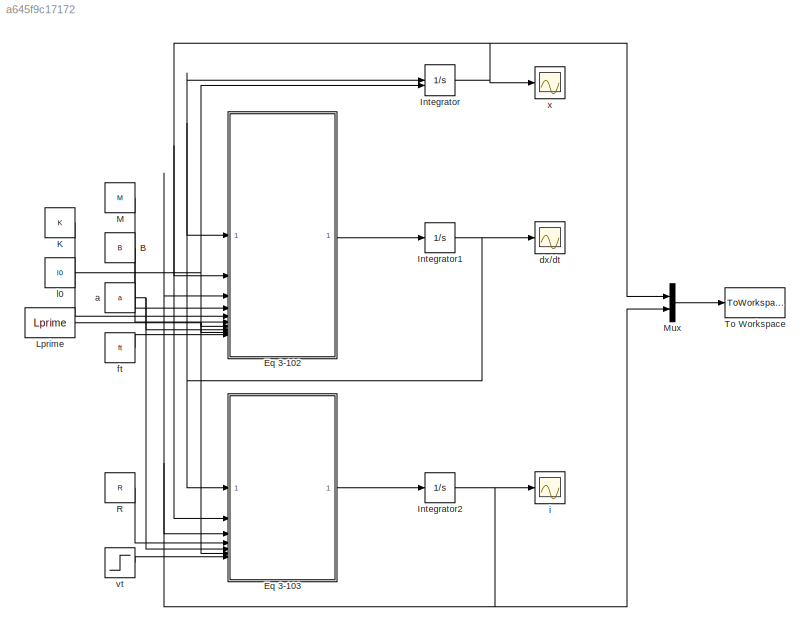
MODEL slx_a645f9c17172
KIND model
CONFIG AbsTol = auto
CONFIG EnableMultiTasking = on
CONFIG FixedStep = 1e-2
CONFIG MaxStep = auto
CONFIG MinStep = auto
CONFIG RelTol = 1e-3
CONFIG SampleTimeConstraint = Unconstrained
CONFIG SolverName = ode4
CONFIG StartTime = 0.0
CONFIG StopTime = 4
BLOCK [Constant] B
  Value = B
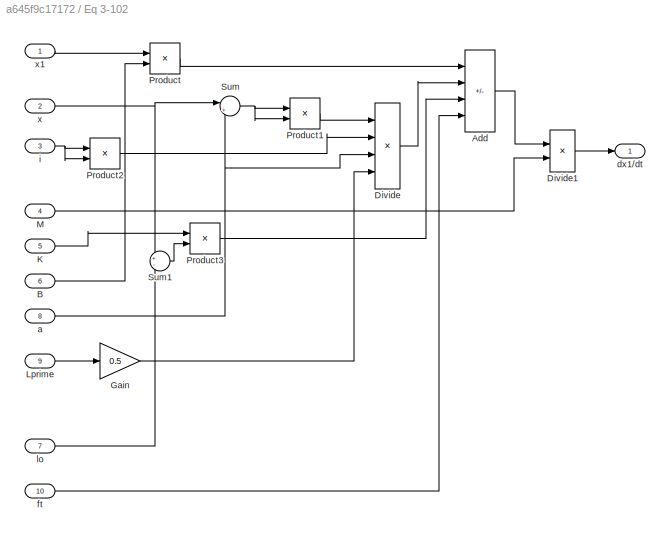
BLOCK [SubSystem] Eq 3-102 
BLOCK [Sum] Eq 3-102 /Add
  IconShape = rectangular
  Inputs = -+--
BLOCK [Inport] Eq 3-102 /B
  Port = 6
BLOCK [Product] Eq 3-102 /Divide
  Inputs = /***
BLOCK [Product] Eq 3-102 /Divide1
  Inputs = */
BLOCK [Gain] Eq 3-102 /Gain
  Gain = 0.5
BLOCK [Inport] Eq 3-102 /K
  Port = 5
BLOCK [Inport] Eq 3-102 /Lprime
  Port = 9
BLOCK [Inport] Eq 3-102 /M
  Port = 4
BLOCK [Product] Eq 3-102 /Product
BLOCK [Product] Eq 3-102 /Product1
BLOCK [Product] Eq 3-102 /Product2
BLOCK [Product] Eq 3-102 /Product3
BLOCK [Sum] Eq 3-102 /Sum
  Inputs = |++
BLOCK [Sum] Eq 3-102 /Sum1
  Inputs = +-
BLOCK [Inport] Eq 3-102 /a
  Port = 8
BLOCK [Outport] Eq 3-102 /dx1//dt
BLOCK [Inport] Eq 3-102 /ft
  Port = 10
BLOCK [Inport] Eq 3-102 /i
  Port = 3
BLOCK [Inport] Eq 3-102 /lo
  Port = 7
BLOCK [Inport] Eq 3-102 /x
  Port = 2
BLOCK [Inport] Eq 3-102 /x1
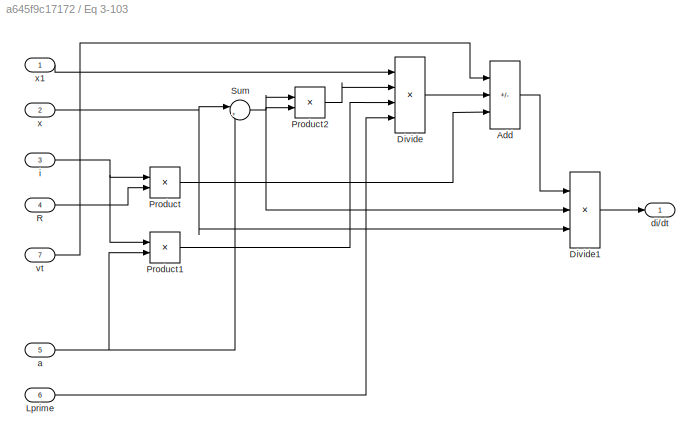
BLOCK [SubSystem] Eq 3-103
BLOCK [Sum] Eq 3-103/Add
  IconShape = rectangular
  Inputs = +--
BLOCK [Product] Eq 3-103/Divide
  Inputs = */**
BLOCK [Product] Eq 3-103/Divide1
  Inputs = **/
BLOCK [Inport] Eq 3-103/Lprime
  Port = 6
BLOCK [Product] Eq 3-103/Product
BLOCK [Product] Eq 3-103/Product1
BLOCK [Product] Eq 3-103/Product2
BLOCK [Inport] Eq 3-103/R
  Port = 4
BLOCK [Sum] Eq 3-103/Sum
  Inputs = |++
BLOCK [Inport] Eq 3-103/a
  Port = 5
BLOCK [Outport] Eq 3-103/di//dt
BLOCK [Inport] Eq 3-103/i
  Port = 3
BLOCK [Inport] Eq 3-103/vt
  Port = 7
BLOCK [Inport] Eq 3-103/x
  Port = 2
BLOCK [Inport] Eq 3-103/x1
BLOCK [Integrator] Integrator
  InitialConditionSource = external
BLOCK [Integrator] Integrator1
BLOCK [Integrator] Integrator2
BLOCK [Constant] K
  Value = K
BLOCK [Constant] Lprime
  Value = Lprime
BLOCK [Constant] M
  Value = M
BLOCK [Mux] Mux
  DisplayOption = bar
  Inputs = 2
BLOCK [Constant] R
  Value = R
BLOCK [ToWorkspace] To Workspace
  FixptAsFi = on
  MaxDataPoints = inf
  SampleTime = -1
  SaveFormat = Timeseries
  VariableName = simout
BLOCK [Constant] a
  Value = a
BLOCK [Scope] dx//dt
  Floating = off
  NumInputPorts = 1
  ScopeSpecificationString = C++SS(StrPVP('Location','[1, 49, 1921, 1031]'),StrPVP('Open','off'),MxPVP('AxesTitles',54,'struct(''axes1'',''%<SignalLabel>'')'),MxPVP('ScopeGraphics',57,'struct(''FigureColor'',''[0.5 0.5 0.5]'',''AxesColor'',''[0 0 0]'',''AxesTickColor'',''[1 1 1]'',''LineColors'',''[1 1 0;1 0 1;0 1 1;1 0 0;0 1 0;0 0 1]'',''LineStyles'',''-|-|-|-|-|-'',''LineWidths'',''[0.5 0.5 0.5 0.5 0.5 0.5]'',''MarkerStyles...<+220ch>
BLOCK [Constant] ft
  Value = ft
BLOCK [Scope] i
  Floating = off
  NumInputPorts = 1
  ScopeSpecificationString = Simulink.scopes.TimeScopeBlockCfg('CurrentConfiguration', extmgr.ConfigurationSet(extmgr.Configuration('Core','General UI',true),extmgr.Configuration('Core','Source UI',true),extmgr.Configuration('Sources','WiredSimulink',true,'DataLoggingVariableName','ScopeData2','DataLoggingLimitDataPoints',true,'DataLoggingSaveFormat','Array','DataLoggingDecimation','1','DataLoggingDecimateData',true),extmgr.C...<+1753ch>
BLOCK [Constant] l0
  Value = l0
BLOCK [Step] vt 
  After = 10
  SampleTime = 0
  Time = 0.5
BLOCK [Scope] x
  Floating = off
  NumInputPorts = 1
  ScopeSpecificationString = Simulink.scopes.TimeScopeBlockCfg('CurrentConfiguration', extmgr.ConfigurationSet(extmgr.Configuration('Core','General UI',true),extmgr.Configuration('Core','Source UI',true),extmgr.Configuration('Sources','WiredSimulink',true,'DataLoggingLimitDataPoints',true,'DataLoggingSaveFormat','Array','DataLoggingDecimation','1','DataLoggingDecimateData',true),extmgr.Configuration('Visuals','Time Domain',tr...<+1635ch>
LINE B:1 -> Eq 3-102 :6
LINE Eq 3-102 /Add:1 -> Eq 3-102 /Divide1:1
LINE Eq 3-102 /B:1 -> Eq 3-102 /Product:2
LINE Eq 3-102 /Divide1:1 -> Eq 3-102 /dx1//dt:1
LINE Eq 3-102 /Divide:1 -> Eq 3-102 /Add:2
LINE Eq 3-102 /Gain:1 -> Eq 3-102 /Divide:4
LINE Eq 3-102 /K:1 -> Eq 3-102 /Product3:1
LINE Eq 3-102 /Lprime:1 -> Eq 3-102 /Gain:1
LINE Eq 3-102 /M:1 -> Eq 3-102 /Divide1:2
LINE Eq 3-102 /Product1:1 -> Eq 3-102 /Divide:1
LINE Eq 3-102 /Product2:1 -> Eq 3-102 /Divide:2
LINE Eq 3-102 /Product3:1 -> Eq 3-102 /Add:3
LINE Eq 3-102 /Product:1 -> Eq 3-102 /Add:1
LINE Eq 3-102 /Sum1:1 -> Eq 3-102 /Product3:2
NET Eq 3-102 /Sum:1 -> Eq 3-102 /Product1:1, Eq 3-102 /Product1:2
NET Eq 3-102 /a:1 -> Eq 3-102 /Divide:3, Eq 3-102 /Sum:2
LINE Eq 3-102 /ft:1 -> Eq 3-102 /Add:4
NET Eq 3-102 /i:1 -> Eq 3-102 /Product2:1, Eq 3-102 /Product2:2
LINE Eq 3-102 /lo:1 -> Eq 3-102 /Sum1:2
LINE Eq 3-102 /x1:1 -> Eq 3-102 /Product:1
NET Eq 3-102 /x:1 -> Eq 3-102 /Sum1:1, Eq 3-102 /Sum:1
LINE Eq 3-102 :1 -> Integrator1:1
LINE Eq 3-103/Add:1 -> Eq 3-103/Divide1:1
LINE Eq 3-103/Divide1:1 -> Eq 3-103/di//dt:1
LINE Eq 3-103/Divide:1 -> Eq 3-103/Add:2
LINE Eq 3-103/Lprime:1 -> Eq 3-103/Divide:4
LINE Eq 3-103/Product1:1 -> Eq 3-103/Divide:3
LINE Eq 3-103/Product2:1 -> Eq 3-103/Divide:2
LINE Eq 3-103/Product:1 -> Eq 3-103/Add:3
LINE Eq 3-103/R:1 -> Eq 3-103/Product:2
NET Eq 3-103/Sum:1 -> Eq 3-103/Divide1:2, Eq 3-103/Product2:1, Eq 3-103/Product2:2
NET Eq 3-103/a:1 -> Eq 3-103/Product1:2, Eq 3-103/Sum:2
NET Eq 3-103/i:1 -> Eq 3-103/Product1:1, Eq 3-103/Product:1
LINE Eq 3-103/vt:1 -> Eq 3-103/Add:1
LINE Eq 3-103/x1:1 -> Eq 3-103/Divide:1
NET Eq 3-103/x:1 -> Eq 3-103/Divide1:3, Eq 3-103/Sum:1
LINE Eq 3-103:1 -> Integrator2:1
NET Integrator1:1 -> Eq 3-102 :1, Eq 3-103:1, Integrator:1, dx//dt:1
NET Integrator2:1 -> Eq 3-102 :3, Eq 3-103:3, Mux:2, i:1
NET Integrator:1 -> Eq 3-102 :2, Eq 3-103:2, Mux:1, x:1
LINE K:1 -> Eq 3-102 :5
NET Lprime:1 -> Eq 3-102 :9, Eq 3-103:6
LINE M:1 -> Eq 3-102 :4
LINE Mux:1 -> To Workspace:1
LINE R:1 -> Eq 3-103:4
NET a:1 -> Eq 3-102 :8, Eq 3-103:5
LINE ft:1 -> Eq 3-102 :10
NET l0:1 -> Eq 3-102 :7, Integrator:2
LINE vt :1 -> Eq 3-103:7
note: NET lines group one-source signal fan-out (src -> all destinations, sorted); 1:1 wires keep LINE
